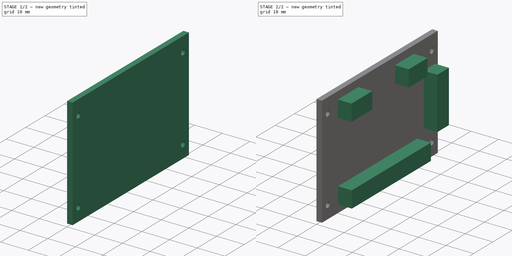
[diagram: build sequence overview — one tinted view per stage of 2, left to right]
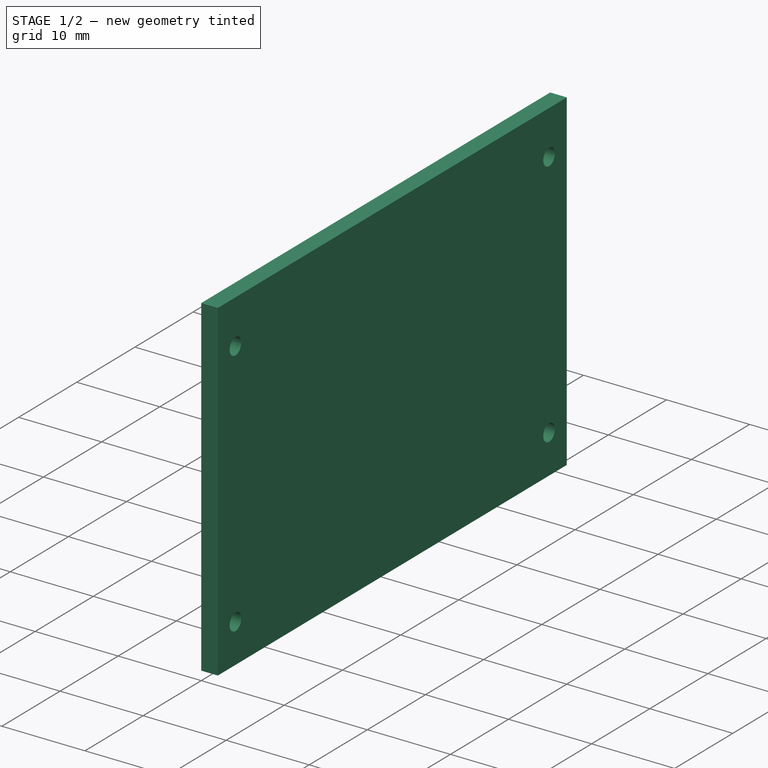
[diagram: stage 1 of 2 — iso view after this stage's code; geometry added in this stage tinted green]
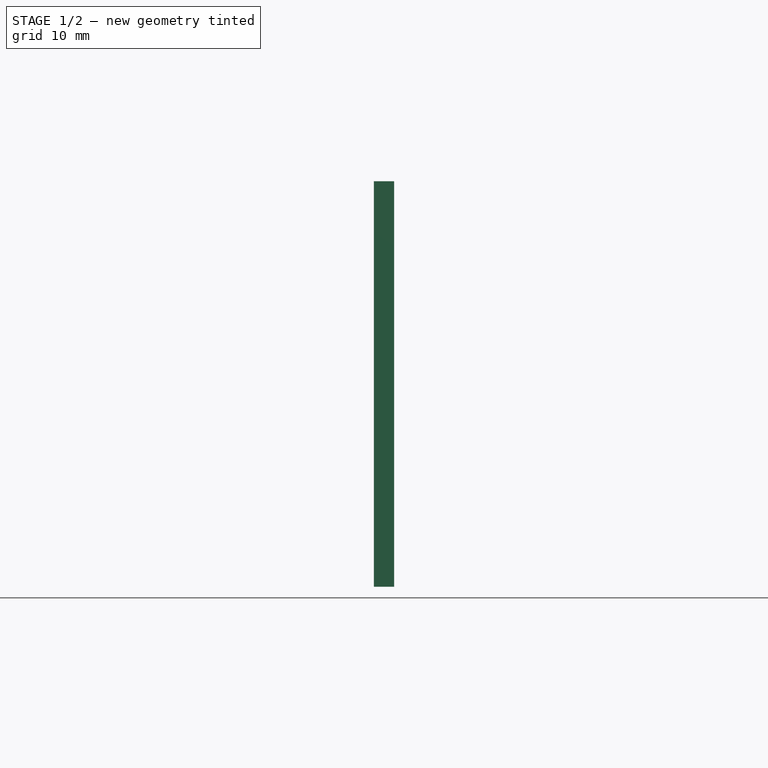
[diagram: stage 1 of 2 — front view after this stage's code; geometry added in this stage tinted green]
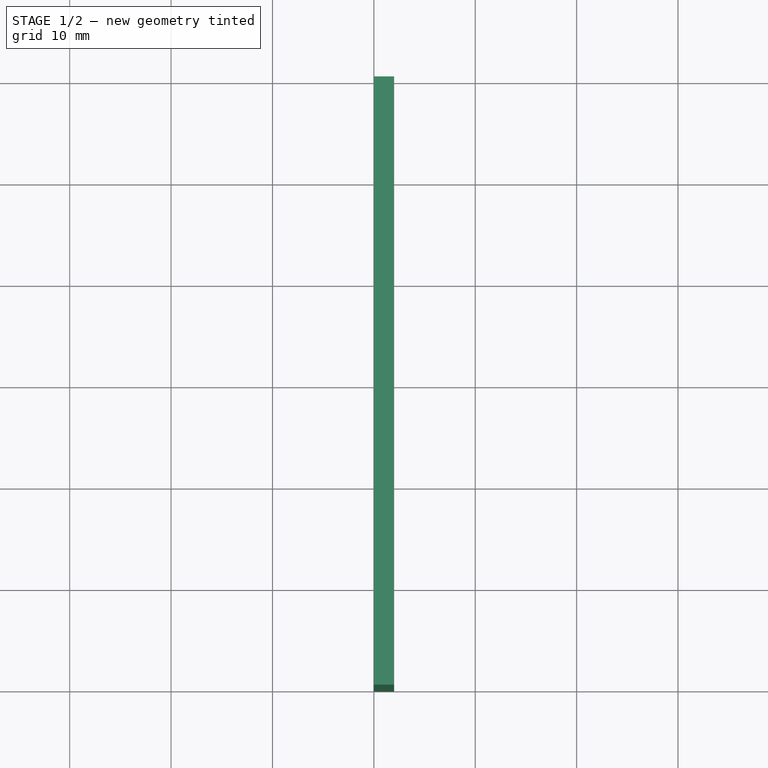
[diagram: stage 1 of 2 — top view after this stage's code; geometry added in this stage tinted green]
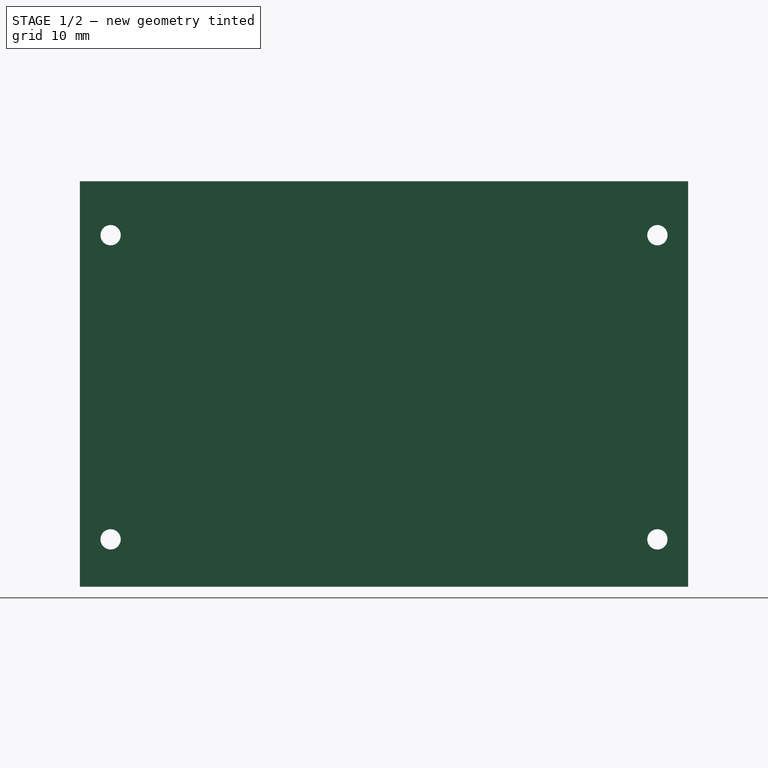
[diagram: stage 1 of 2 — right view after this stage's code; geometry added in this stage tinted green]
FCSTD DOCUMENT  (FreeCAD 0.19R14555 (Git shallow))
Label: 1200_PCB_Joystick01
License: All rights reserved
LicenseURL: http://en.wikipedia.org/wiki/All_rights_reserved
objects: Sketcher::SketchObject×2, PartDesign::Pad×2, PartDesign::Body×1
note: 7 computed .brp shape members not serialized (recipe doc carries the construction recipe); baked Part::Feature solids carry a one-line shape summary decoded from their .brp

FEATURE [Sketcher::SketchObject] Sketch
  FullyConstrained = false
  MapMode = 5
  Placement = pos=(0,0,0) rot=(0.57735,0.57735,0.57735;2.0944rad)
  sketch-geometry (16):
    g0: LineSegment StartX=0 StartY=0 StartZ=0 EndX=60 EndY=0 EndZ=0
    g1: LineSegment StartX=60 StartY=0 StartZ=0 EndX=60 EndY=40 EndZ=0
    g2: LineSegment StartX=60 StartY=40 StartZ=0 EndX=0 EndY=40 EndZ=0
    g3: LineSegment StartX=0 StartY=40 StartZ=0 EndX=0 EndY=0 EndZ=0
    g4: LineSegment StartX=0 StartY=40 StartZ=0 EndX=30 EndY=20 EndZ=0
    g5: LineSegment StartX=30 StartY=20 StartZ=0 EndX=60 EndY=0 EndZ=0
    g6: LineSegment StartX=30 StartY=20 StartZ=0 EndX=3.035 EndY=20 EndZ=0
    g7: LineSegment StartX=30 StartY=20 StartZ=0 EndX=56.965 EndY=20 EndZ=0
    g8: LineSegment StartX=3.035 StartY=34.678 StartZ=0 EndX=56.965 EndY=34.678 EndZ=0
    g9: LineSegment StartX=56.965 StartY=34.678 StartZ=0 EndX=56.965 EndY=4.67805 EndZ=0
    g10: LineSegment StartX=56.965 StartY=4.67805 StartZ=0 EndX=3.035 EndY=4.67805 EndZ=0
    g11: LineSegment StartX=3.035 StartY=4.67805 StartZ=0 EndX=3.035 EndY=34.678 EndZ=0
    g12: Circle CenterX=3.035 CenterY=34.678 CenterZ=0 NormalX=0 NormalY=0 NormalZ=1 AngleXU=0 Radius=1
    g13: Circle CenterX=56.965 CenterY=34.678 CenterZ=0 NormalX=0 NormalY=0 NormalZ=1 AngleXU=0 Radius=1
    g14: Circle CenterX=56.965 CenterY=4.67805 CenterZ=0 NormalX=0 NormalY=0 NormalZ=1 AngleXU=0 Radius=1
    g15: Circle CenterX=3.035 CenterY=4.67805 CenterZ=0 NormalX=0 NormalY=0 NormalZ=1 AngleXU=0 Radius=1
  constraints (41):
    c: Coincident(g0,g1)
    c: Coincident(g1,g2)
    c: Coincident(g2,g3)
    c: Coincident(g3,g0)
    c: Horizontal(g0)
    c: Horizontal(g2)
    c: Vertical(g1)
    c: Vertical(g3)
    c: Coincident(g0,g-1)
    c: DistanceY(g3,g3) = 40
    c: DistanceX(g0,g0) = 60
    c: Coincident(g4,g2)
    c: Coincident(g5,g4)
    c: Coincident(g5,g0)
    c: Equal(g5,g4)
    c: Coincident(g6,g4)
    c: Horizontal(g6)
    c: Coincident(g7,g4)
    c: Horizontal(g7)
    c: Equal(g6,g7)
    c: Coincident(g8,g9)
    c: Coincident(g9,g10)
    c: Coincident(g10,g11)
    c: Coincident(g11,g8)
    c: Horizontal(g8)
    c: Horizontal(g10)
    c: Vertical(g9)
    c: Vertical(g11)
    c: Parallel(g5,g4)
    c: PointOnObject(g6,g11)
    c: PointOnObject(g7,g9)
    c: DistanceY(g11,g11) = 30
    c: DistanceX(g10,g10) = 53.93
    c: Coincident(g12,g8)
    c: Coincident(g13,g8)
    c: Coincident(g14,g9)
    c: Coincident(g15,g10)
    c: Diameter(g12) = 2
    c: Equal(g12,g13)
    c: Equal(g13,g14)
    c: Equal(g14,g15)
FEATURE [PartDesign::Pad] Pad
  Direction = (1,1,1)
  Length = 2
  Length2 = 100
  Placement = pos=(0,0,0) rot=(0.57735,0.57735,0.57735;2.0944rad)
  Profile = -> Sketch
  Type = 0
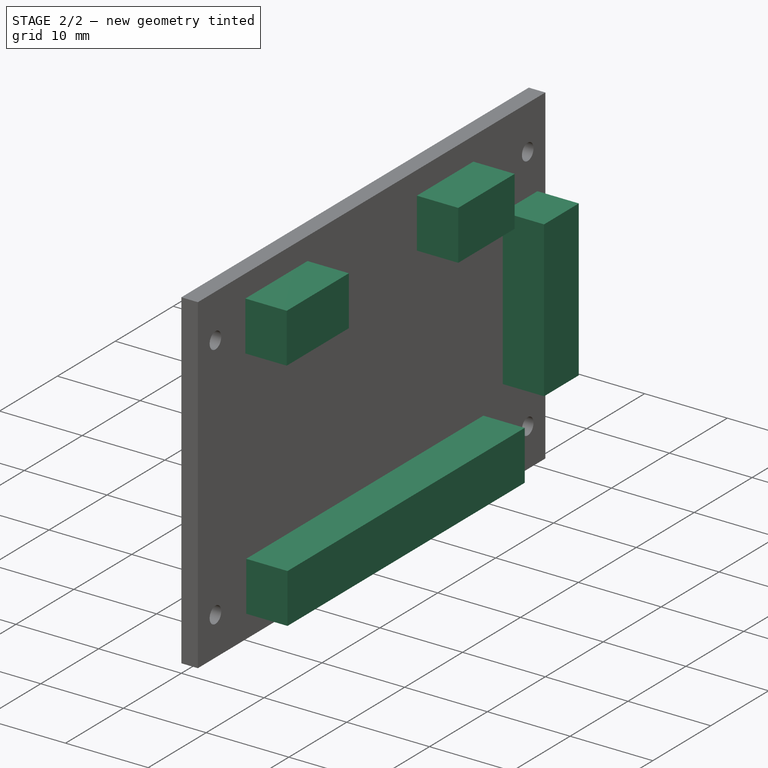
[diagram: stage 2 of 2 — iso view after this stage's code; geometry added in this stage tinted green]
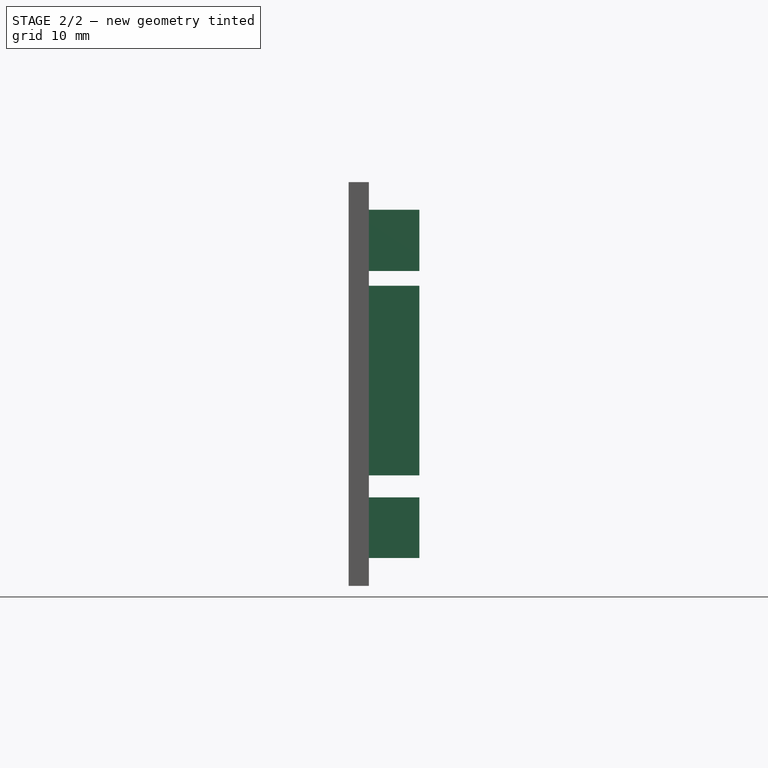
[diagram: stage 2 of 2 — front view after this stage's code; geometry added in this stage tinted green]
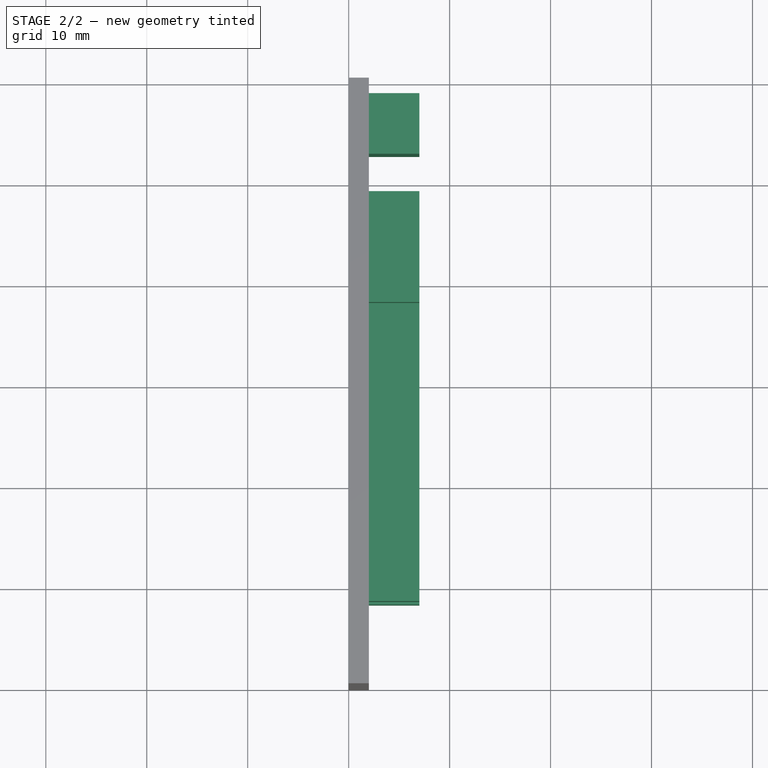
[diagram: stage 2 of 2 — top view after this stage's code; geometry added in this stage tinted green]
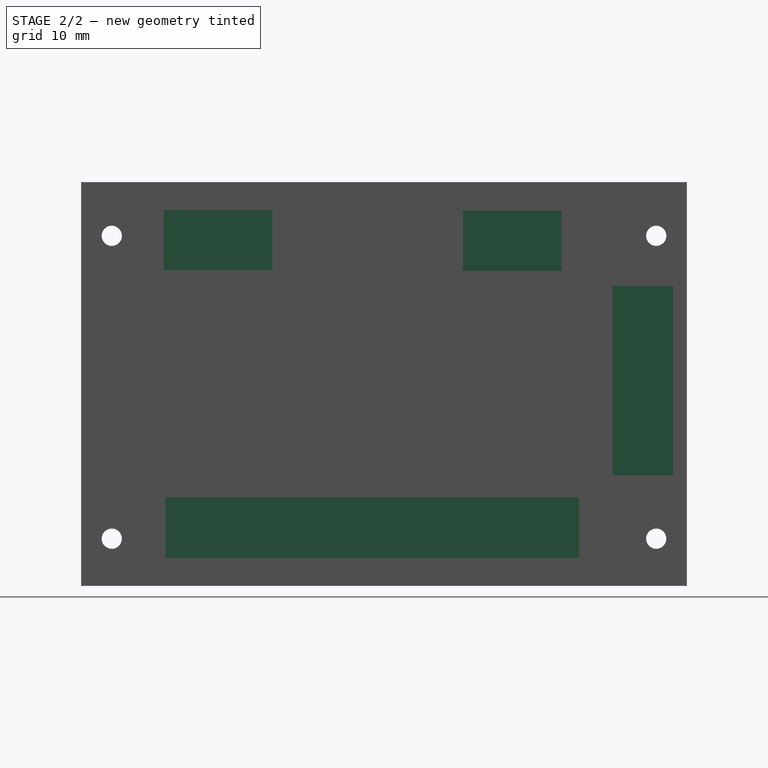
[diagram: stage 2 of 2 — right view after this stage's code; geometry added in this stage tinted green]
FEATURE [Sketcher::SketchObject] Sketch001
  FullyConstrained = false
  MapMode = 5
  Placement = pos=(2,-4e-16,2e-16) rot=(0.57735,0.57735,0.57735;2.0944rad)
  Support = -> [Pad]
  sketch-geometry (16):
    g0: LineSegment StartX=8.20188 StartY=37.2653 StartZ=0 EndX=18.9364 EndY=37.2653 EndZ=0
    g1: LineSegment StartX=18.9364 StartY=37.2653 StartZ=0 EndX=18.9364 EndY=31.2653 EndZ=0
    g2: LineSegment StartX=18.9364 StartY=31.2653 StartZ=0 EndX=8.20188 EndY=31.2653 EndZ=0
    g3: LineSegment StartX=8.20188 StartY=31.2653 StartZ=0 EndX=8.20188 EndY=37.2653 EndZ=0
    g4: LineSegment StartX=52.6421 StartY=29.7326 StartZ=0 EndX=58.6421 EndY=29.7326 EndZ=0
    g5: LineSegment StartX=58.6421 StartY=29.7326 StartZ=0 EndX=58.6421 EndY=10.9473 EndZ=0
    g6: LineSegment StartX=58.6421 StartY=10.9473 StartZ=0 EndX=52.6421 EndY=10.9473 EndZ=0
    g7: LineSegment StartX=52.6421 StartY=10.9473 StartZ=0 EndX=52.6421 EndY=29.7326 EndZ=0
    g8: LineSegment StartX=8.34313 StartY=8.76719 StartZ=0 EndX=49.3036 EndY=8.76719 EndZ=0
    g9: LineSegment StartX=49.3036 StartY=8.76719 StartZ=0 EndX=49.3036 EndY=2.76719 EndZ=0
    g10: LineSegment StartX=49.3036 StartY=2.76719 StartZ=0 EndX=8.34313 EndY=2.76719 EndZ=0
    g11: LineSegment StartX=8.34313 StartY=2.76719 StartZ=0 EndX=8.34313 EndY=8.76719 EndZ=0
    g12: LineSegment StartX=37.8241 StartY=37.192 StartZ=0 EndX=47.5698 EndY=37.192 EndZ=0
    g13: LineSegment StartX=47.5698 StartY=37.192 StartZ=0 EndX=47.5698 EndY=31.192 EndZ=0
    g14: LineSegment StartX=47.5698 StartY=31.192 StartZ=0 EndX=37.8241 EndY=31.192 EndZ=0
    g15: LineSegment StartX=37.8241 StartY=31.192 StartZ=0 EndX=37.8241 EndY=37.192 EndZ=0
  constraints (36):
    c: Coincident(g0,g1)
    c: Coincident(g1,g2)
    c: Coincident(g2,g3)
    c: Coincident(g3,g0)
    c: Horizontal(g0)
    c: Horizontal(g2)
    c: Vertical(g1)
    c: Vertical(g3)
    c: Coincident(g4,g5)
    c: Coincident(g5,g6)
    c: Coincident(g6,g7)
    c: Coincident(g7,g4)
    c: Horizontal(g4)
    c: Horizontal(g6)
    c: Vertical(g5)
    c: Vertical(g7)
    c: Coincident(g8,g9)
    c: Coincident(g9,g10)
    c: Coincident(g10,g11)
    c: Coincident(g11,g8)
    c: Horizontal(g8)
    c: Horizontal(g10)
    c: Vertical(g9)
    c: Vertical(g11)
    c: Coincident(g12,g13)
    c: Coincident(g13,g14)
    c: Coincident(g14,g15)
    c: Coincident(g15,g12)
    c: Horizontal(g12)
    c: Horizontal(g14)
    c: Vertical(g13)
    c: Vertical(g15)
    c: Equal(g6,g9)
    c: Equal(g9,g13)
    c: Equal(g13,g1)
    c: DistanceY(g11,g11) = 6
FEATURE [PartDesign::Pad] Pad001
  BaseFeature = -> Pad
  Direction = (1,1,1)
  Length = 5
  Length2 = 100
  Placement = pos=(0,0,0) rot=(0.57735,0.57735,0.57735;2.0944rad)
  Profile = -> Sketch001
  Type = 0
FEATURE [PartDesign::Body] Body
  Group = -> [Sketch,Pad,Sketch001,Pad001]
  Origin = -> Origin
  Tip = -> Pad001
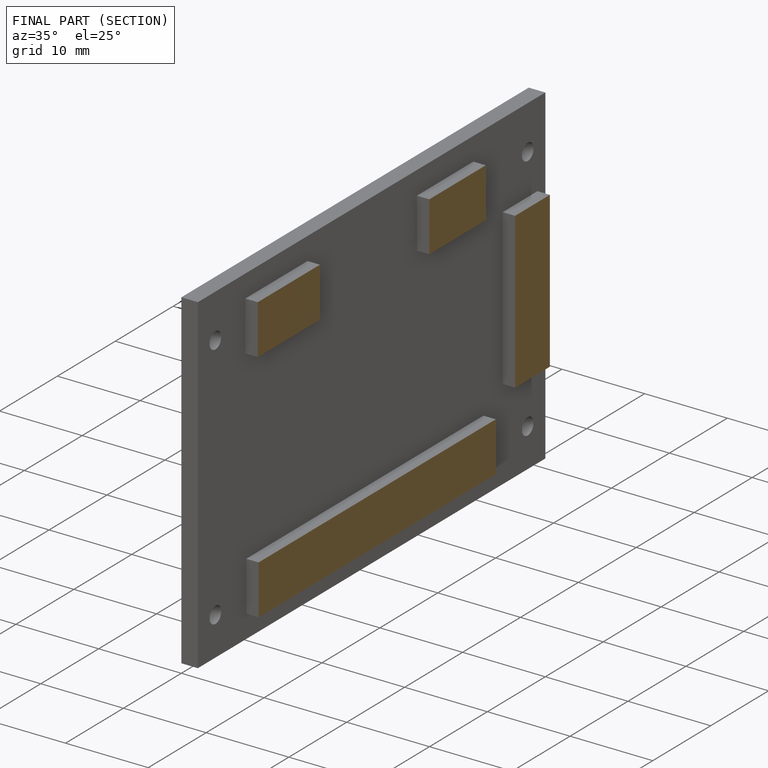
[diagram: finished part — half-section view (interior)]
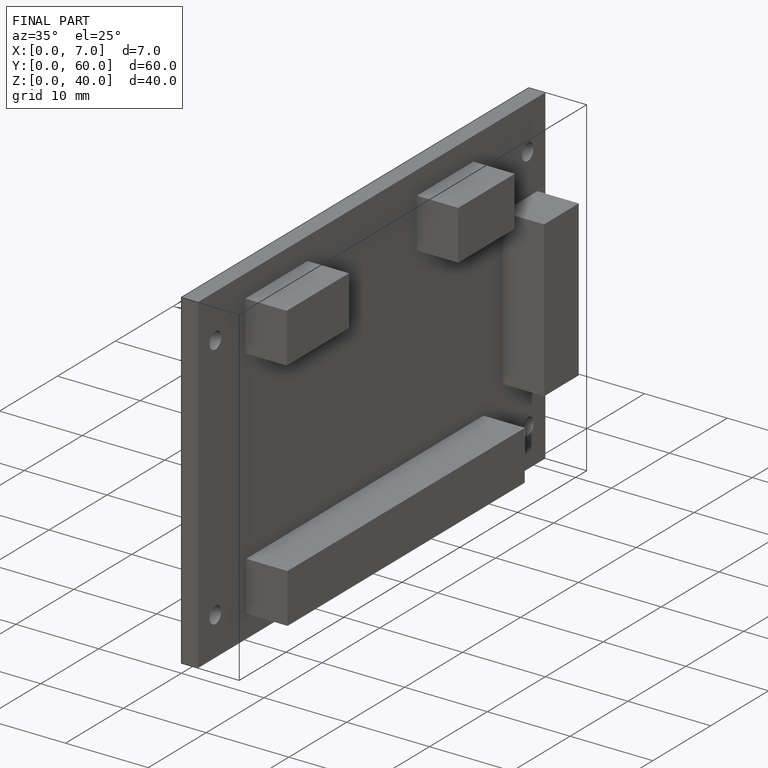
[diagram: finished part — iso view with bounding-box wireframe]
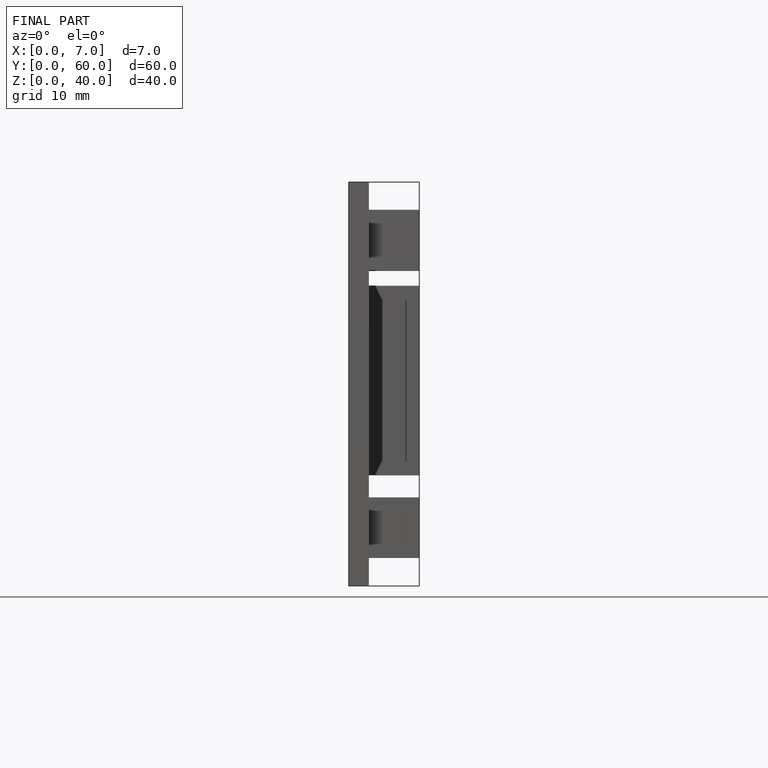
[diagram: finished part — front view with bounding-box wireframe]
